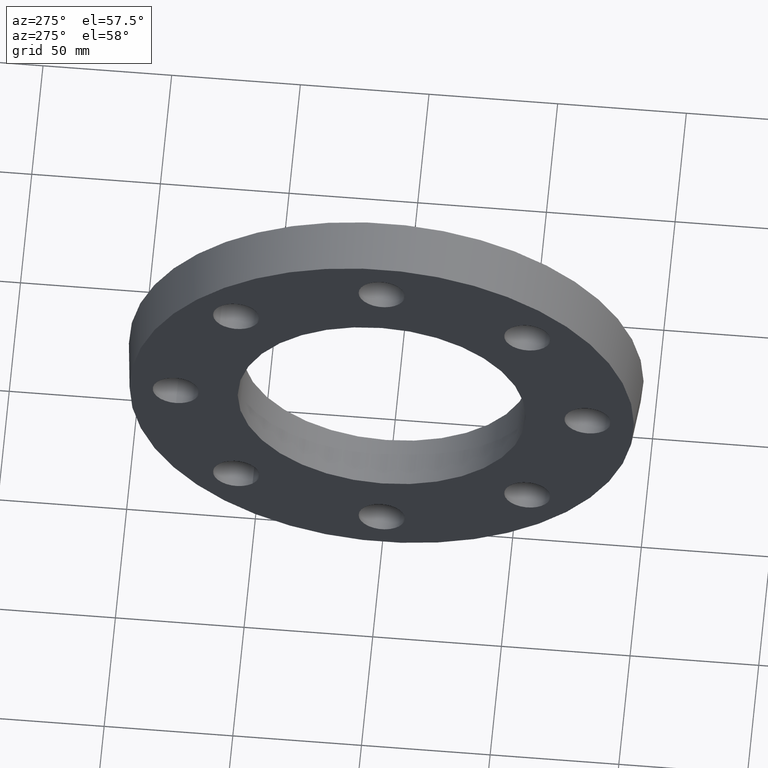
[diagram: clean part render]
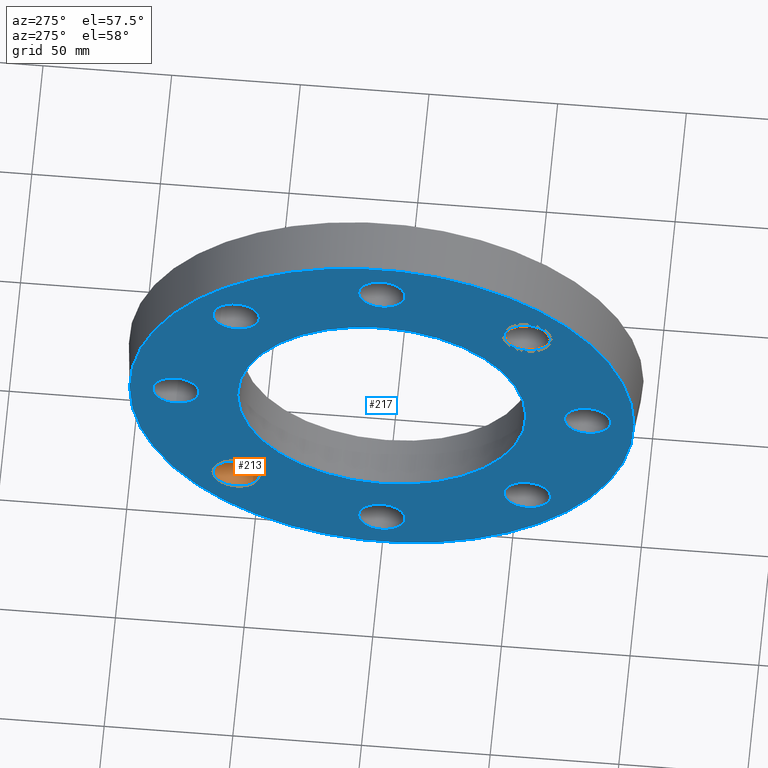
[diagram: same view with the hole feature highlighted: cylindrical wall and planar end face, labeled with their STEP entity ids]
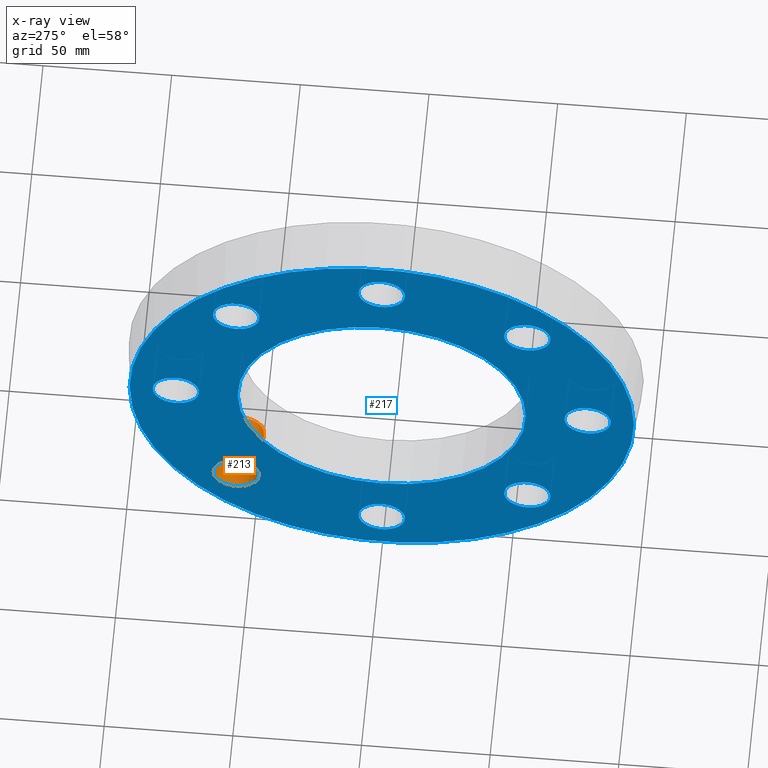
[diagram: x-ray of the same camera — body ghosted, the hole faces saturated]
A machine part, auxiliary view. The highlighted faces form one hole feature of diameter 18 mm: the cylindrical wall (entity #213, orange) and its adjacent planar end face (entity #217, blue) — they share a circular edge in the B-rep.
The next image is the same camera in x-ray (body ghosted, the hole faces saturated) — the bore reads through the body.
Wall:
#24=FACE_BOUND('',#71,.T.);
#52=FACE_OUTER_BOUND('',#70,.T.);
#70=EDGE_LOOP('',(#170));
#71=EDGE_LOOP('',(#171));
#110=CIRCLE('',#240,9.);
#111=CIRCLE('',#241,9.);
#130=VERTEX_POINT('',#351);
#131=VERTEX_POINT('',#353);
#150=EDGE_CURVE('',#130,#130,#110,.T.);
#151=EDGE_CURVE('',#131,#131,#111,.T.);
#170=ORIENTED_EDGE('',*,*,#150,.F.);
#171=ORIENTED_EDGE('',*,*,#151,.F.);
#204=CYLINDRICAL_SURFACE('',#239,9.);
#213=ADVANCED_FACE('',(#52,#24),#204,.F.);
#239=AXIS2_PLACEMENT_3D('',#350,#291,#292);
#240=AXIS2_PLACEMENT_3D('',#352,#293,#294);
#241=AXIS2_PLACEMENT_3D('',#354,#295,#296);
#291=DIRECTION('center_axis',(-1.,0.,0.));
#292=DIRECTION('ref_axis',(0.,0.707106781186547,0.707106781186548));
#293=DIRECTION('center_axis',(1.,0.,0.));
#294=DIRECTION('ref_axis',(0.,0.707106781186547,0.707106781186548));
#295=DIRECTION('center_axis',(-1.,0.,0.));
#296=DIRECTION('ref_axis',(0.,0.707106781186547,0.707106781186548));
#350=CARTESIAN_POINT('Origin',(10.,56.5685424949238,-56.5685424949238));
#351=CARTESIAN_POINT('',(-10.,50.2045814642449,-62.9325035256027));
#352=CARTESIAN_POINT('Origin',(-10.,56.5685424949238,-56.5685424949238));
#353=CARTESIAN_POINT('',(10.,50.2045814642449,-62.9325035256027));
#354=CARTESIAN_POINT('Origin',(10.,56.5685424949238,-56.5685424949238));
End face:
#17=PLANE('',#250);
#36=FACE_BOUND('',#87,.T.);
#37=FACE_BOUND('',#88,.T.);
#38=FACE_BOUND('',#89,.T.);
#39=FACE_BOUND('',#90,.T.);
#40=FACE_BOUND('',#91,.T.);
#41=FACE_BOUND('',#92,.T.);
#42=FACE_BOUND('',#93,.T.);
#43=FACE_BOUND('',#94,.T.);
#44=FACE_BOUND('',#95,.T.);
#56=FACE_OUTER_BOUND('',#86,.T.);
#86=EDGE_LOOP('',(#186));
#87=EDGE_LOOP('',(#187));
#88=EDGE_LOOP('',(#188));
#89=EDGE_LOOP('',(#189));
#90=EDGE_LOOP('',(#190));
#91=EDGE_LOOP('',(#191));
#92=EDGE_LOOP('',(#192));
#93=EDGE_LOOP('',(#193));
#94=EDGE_LOOP('',(#194));
#95=EDGE_LOOP('',(#195));
#98=CIRCLE('',#222,9.);
#100=CIRCLE('',#225,9.);
#102=CIRCLE('',#228,9.);
#104=CIRCLE('',#231,9.);
#106=CIRCLE('',#234,9.);
#108=CIRCLE('',#237,9.);
#110=CIRCLE('',#240,9.);
#112=CIRCLE('',#243,9.);
#116=CIRCLE('',#249,98.);
#117=CIRCLE('',#251,56.);
#118=VERTEX_POINT('',#321);
#120=VERTEX_POINT('',#326);
#122=VERTEX_POINT('',#331);
#124=VERTEX_POINT('',#336);
#126=VERTEX_POINT('',#341);
#128=VERTEX_POINT('',#346);
#130=VERTEX_POINT('',#351);
#132=VERTEX_POINT('',#356);
#136=VERTEX_POINT('',#366);
#137=VERTEX_POINT('',#369);
#138=EDGE_CURVE('',#118,#118,#98,.T.);
#140=EDGE_CURVE('',#120,#120,#100,.T.);
#142=EDGE_CURVE('',#122,#122,#102,.T.);
#144=EDGE_CURVE('',#124,#124,#104,.T.);
#146=EDGE_CURVE('',#126,#126,#106,.T.);
#148=EDGE_CURVE('',#128,#128,#108,.T.);
#150=EDGE_CURVE('',#130,#130,#110,.T.);
#152=EDGE_CURVE('',#132,#132,#112,.T.);
#156=EDGE_CURVE('',#136,#136,#116,.T.);
#157=EDGE_CURVE('',#137,#137,#117,.T.);
#186=ORIENTED_EDGE('',*,*,#156,.T.);
#187=ORIENTED_EDGE('',*,*,#138,.T.);
#188=ORIENTED_EDGE('',*,*,#140,.T.);
#189=ORIENTED_EDGE('',*,*,#142,.T.);
#190=ORIENTED_EDGE('',*,*,#144,.T.);
#191=ORIENTED_EDGE('',*,*,#146,.T.);
#192=ORIENTED_EDGE('',*,*,#148,.T.);
#193=ORIENTED_EDGE('',*,*,#150,.T.);
#194=ORIENTED_EDGE('',*,*,#152,.T.);
#195=ORIENTED_EDGE('',*,*,#157,.F.);
#217=ADVANCED_FACE('',(#56,#36,#37,#38,#39,#40,#41,#42,#43,#44),#17,.T.);
#222=AXIS2_PLACEMENT_3D('',#322,#257,#258);
#225=AXIS2_PLACEMENT_3D('',#327,#263,#264);
#228=AXIS2_PLACEMENT_3D('',#332,#269,#270);
#231=AXIS2_PLACEMENT_3D('',#337,#275,#276);
#234=AXIS2_PLACEMENT_3D('',#342,#281,#282);
#237=AXIS2_PLACEMENT_3D('',#347,#287,#288);
#240=AXIS2_PLACEMENT_3D('',#352,#293,#294);
#243=AXIS2_PLACEMENT_3D('',#357,#299,#300);
#249=AXIS2_PLACEMENT_3D('',#367,#311,#312);
#250=AXIS2_PLACEMENT_3D('',#368,#313,#314);
#251=AXIS2_PLACEMENT_3D('',#370,#315,#316);
#257=DIRECTION('center_axis',(1.,0.,0.));
#258=DIRECTION('ref_axis',(0.,-0.707106781186548,0.707106781186547));
#263=DIRECTION('center_axis',(1.,0.,0.));
#264=DIRECTION('ref_axis',(0.,-1.,-1.2335811384724E-16));
#269=DIRECTION('center_axis',(1.,0.,0.));
#270=DIRECTION('ref_axis',(0.,-0.707106781186547,-0.707106781186548));
#275=DIRECTION('center_axis',(1.,0.,0.));
#276=DIRECTION('ref_axis',(0.,1.2335811384724E-16,-1.));
#281=DIRECTION('center_axis',(1.,0.,0.));
#282=DIRECTION('ref_axis',(0.,0.707106781186548,-0.707106781186547));
#287=DIRECTION('center_axis',(1.,0.,0.));
#288=DIRECTION('ref_axis',(0.,1.,0.));
#293=DIRECTION('center_axis',(1.,0.,0.));
#294=DIRECTION('ref_axis',(0.,0.707106781186547,0.707106781186548));
#299=DIRECTION('center_axis',(1.,0.,0.));
#300=DIRECTION('ref_axis',(0.,0.,1.));
#311=DIRECTION('center_axis',(-1.,0.,0.));
#312=DIRECTION('ref_axis',(0.,0.,1.));
#313=DIRECTION('center_axis',(-1.,0.,0.));
#314=DIRECTION('ref_axis',(0.,0.,1.));
#315=DIRECTION('center_axis',(-1.,0.,0.));
#316=DIRECTION('ref_axis',(0.,0.,1.));
#321=CARTESIAN_POINT('',(-10.,62.9325035256027,50.2045814642449));
#322=CARTESIAN_POINT('Origin',(-10.,56.5685424949238,56.5685424949238));
#326=CARTESIAN_POINT('',(-10.,8.99999999999999,80.));
#327=CARTESIAN_POINT('Origin',(-10.,-1.77635683940025E-14,80.));
#331=CARTESIAN_POINT('',(-10.,-50.2045814642449,62.9325035256027));
#332=CARTESIAN_POINT('Origin',(-10.,-56.5685424949238,56.5685424949238));
#336=CARTESIAN_POINT('',(-10.,-80.,8.99999999999999));
#337=CARTESIAN_POINT('Origin',(-10.,-80.,-1.77635683940025E-14));
#341=CARTESIAN_POINT('',(-10.,-62.9325035256027,-50.2045814642449));
#342=CARTESIAN_POINT('Origin',(-10.,-56.5685424949238,-56.5685424949238));
#346=CARTESIAN_POINT('',(-10.,-9.,-80.));
#347=CARTESIAN_POINT('Origin',(-10.,0.,-80.));
#351=CARTESIAN_POINT('',(-10.,50.2045814642449,-62.9325035256027));
#352=CARTESIAN_POINT('Origin',(-10.,56.5685424949238,-56.5685424949238));
#356=CARTESIAN_POINT('',(-10.,80.,-9.));
#357=CARTESIAN_POINT('Origin',(-10.,80.,0.));
#366=CARTESIAN_POINT('',(-9.99999999999999,-98.,0.));
#367=CARTESIAN_POINT('Origin',(-9.99999999999999,0.,0.));
#368=CARTESIAN_POINT('Origin',(-10.,-56.,0.));
#369=CARTESIAN_POINT('',(-10.,-56.,0.));
#370=CARTESIAN_POINT('Origin',(-10.,0.,0.));